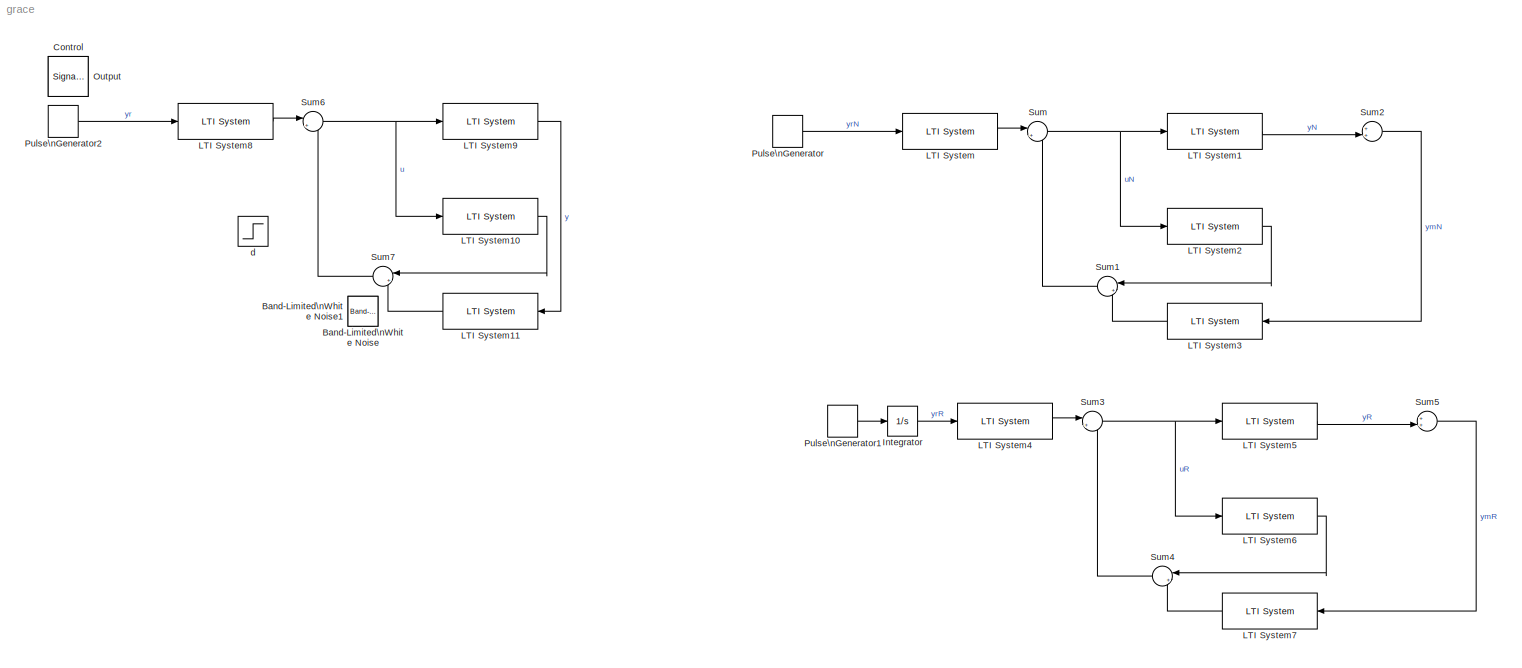
MODEL grace
KIND model
BLOCK [Reference] Band-Limited\nWhite Noise  REF=simulink/Sources/Band-Limited\nWhite Noise
  Cov = Noise_ramp
  IOType = siggen
  Ports = [0, 1]
  SID = 12
  SourceBlock = simulink/Sources/Band-Limited\nWhite Noise
  SourceType = Band-Limited White Noise.
  Ts = Sample_time
  VectorParams1D = on
  seed = [23341]
BLOCK [Reference] Band-Limited\nWhite Noise1  REF=simulink/Sources/Band-Limited\nWhite Noise
  Cov = Noise_step
  IOType = siggen
  Ports = [0, 1]
  SID = 50
  SourceBlock = simulink/Sources/Band-Limited\nWhite Noise
  SourceType = Band-Limited White Noise.
  Ts = Sample_time
  VectorParams1D = on
  seed = [23341]
BLOCK [SignalViewerScope] Control
  IOType = viewer
  MaxDataPoints = 7500
  NumInputPorts = 2
  Ports = []
  RefreshTime = 0.035000
  SID = 55
  ShowDataMarkers = off
  ShowLegends = off
  YMax = 5~5
  YMin = -5~-5
BLOCK [Integrator] Integrator
  Ports = [1, 1]
  SID = 65
BLOCK [Reference] LTI System  REF=cstblocks/LTI System
  IC = []
  Ports = [1, 1]
  SID = 39
  SourceBlock = cstblocks/LTI System
  SourceType = LTI Block
  sys = hs
BLOCK [Reference] LTI System1  REF=cstblocks/LTI System
  IC = []
  Ports = [1, 1]
  SID = 40
  SourceBlock = cstblocks/LTI System
  SourceType = LTI Block
  sys = Gs
BLOCK [Reference] LTI System10  REF=cstblocks/LTI System
  IC = []
  Ports = [1, 1]
  SID = 68
  SourceBlock = cstblocks/LTI System
  SourceType = LTI Block
  sys = Cus
BLOCK [Reference] LTI System11  REF=cstblocks/LTI System
  IC = []
  Ports = [1, 1]
  SID = 69
  SourceBlock = cstblocks/LTI System
  SourceType = LTI Block
  sys = Cys
BLOCK [Reference] LTI System2  REF=cstblocks/LTI System
  IC = []
  Ports = [1, 1]
  SID = 41
  SourceBlock = cstblocks/LTI System
  SourceType = LTI Block
  sys = Cus
BLOCK [Reference] LTI System3  REF=cstblocks/LTI System
  IC = []
  Ports = [1, 1]
  SID = 42
  SourceBlock = cstblocks/LTI System
  SourceType = LTI Block
  sys = Cys
BLOCK [Reference] LTI System4  REF=cstblocks/LTI System
  IC = []
  Ports = [1, 1]
  SID = 57
  SourceBlock = cstblocks/LTI System
  SourceType = LTI Block
  sys = hs
BLOCK [Reference] LTI System5  REF=cstblocks/LTI System
  IC = []
  Ports = [1, 1]
  SID = 58
  SourceBlock = cstblocks/LTI System
  SourceType = LTI Block
  sys = Gs
BLOCK [Reference] LTI System6  REF=cstblocks/LTI System
  IC = []
  Ports = [1, 1]
  SID = 59
  SourceBlock = cstblocks/LTI System
  SourceType = LTI Block
  sys = Cus
BLOCK [Reference] LTI System7  REF=cstblocks/LTI System
  IC = []
  Ports = [1, 1]
  SID = 60
  SourceBlock = cstblocks/LTI System
  SourceType = LTI Block
  sys = Cys
BLOCK [Reference] LTI System8  REF=cstblocks/LTI System
  IC = []
  Ports = [1, 1]
  SID = 66
  SourceBlock = cstblocks/LTI System
  SourceType = LTI Block
  sys = hs
BLOCK [Reference] LTI System9  REF=cstblocks/LTI System
  IC = []
  Ports = [1, 1]
  SID = 67
  SourceBlock = cstblocks/LTI System
  SourceType = LTI Block
  sys = Gs
BLOCK [SignalViewerScope] Output
  IOType = viewer
  LegendLocations = 0.92661     0.84402    0.051611    0.096574\n0.92295     0.42219    0.053807    0.066509
  LimitDataPoints = off
  MaxDataPoints = 7500
  NumInputPorts = 2
  Ports = []
  RefreshTime = 0.035000
  SID = 14
  SaveName = ScopeData1
  ShowDataMarkers = off
  ShowLegends = on
  TimeRange = 40
  YMax = 2.25~2.25
  YMin = -2~-2
BLOCK [DiscretePulseGenerator] Pulse\nGenerator
  Period = 4
  Ports = [0, 1]
  PulseType = Time based
  PulseWidth = 50
  SID = 56
BLOCK [DiscretePulseGenerator] Pulse\nGenerator1
  Period = 4
  Ports = [0, 1]
  PulseType = Time based
  PulseWidth = 50
  SID = 61
BLOCK [DiscretePulseGenerator] Pulse\nGenerator2
  Period = 4
  Ports = [0, 1]
  PulseType = Time based
  PulseWidth = 50
  SID = 70
BLOCK [Sum] Sum
  IconShape = round
  InputSameDT = off
  Inputs = |+-
  OutDataTypeStr = Inherit: Inherit via internal rule
  Ports = [2, 1]
  SID = 44
  SaturateOnIntegerOverflow = off
BLOCK [Sum] Sum1
  IconShape = round
  InputSameDT = off
  Inputs = |++
  OutDataTypeStr = Inherit: Inherit via internal rule
  Ports = [2, 1]
  SID = 45
  SaturateOnIntegerOverflow = off
BLOCK [Sum] Sum2
  IconShape = round
  InputSameDT = off
  Inputs = ++|
  OutDataTypeStr = Inherit: Inherit via internal rule
  Ports = [2, 1]
  SID = 49
  SaturateOnIntegerOverflow = off
BLOCK [Sum] Sum3
  IconShape = round
  InputSameDT = off
  Inputs = |+-
  OutDataTypeStr = Inherit: Inherit via internal rule
  Ports = [2, 1]
  SID = 62
  SaturateOnIntegerOverflow = off
BLOCK [Sum] Sum4
  IconShape = round
  InputSameDT = off
  Inputs = |++
  OutDataTypeStr = Inherit: Inherit via internal rule
  Ports = [2, 1]
  SID = 63
  SaturateOnIntegerOverflow = off
BLOCK [Sum] Sum5
  IconShape = round
  InputSameDT = off
  Inputs = ++|
  OutDataTypeStr = Inherit: Inherit via internal rule
  Ports = [2, 1]
  SID = 64
  SaturateOnIntegerOverflow = off
BLOCK [Sum] Sum6
  IconShape = round
  InputSameDT = off
  Inputs = |+-
  OutDataTypeStr = Inherit: Inherit via internal rule
  Ports = [2, 1]
  SID = 71
  SaturateOnIntegerOverflow = off
BLOCK [Sum] Sum7
  IconShape = round
  InputSameDT = off
  Inputs = |++
  OutDataTypeStr = Inherit: Inherit via internal rule
  Ports = [2, 1]
  SID = 72
  SaturateOnIntegerOverflow = off
BLOCK [Step] d
  After = 0
  IOType = siggen
  SID = 15
  SampleTime = 0.001
  Time = 10
LINE Integrator:1 -> LTI System4:1
LINE LTI System10:1 -> Sum7:1
LINE LTI System11:1 -> Sum7:2
LINE LTI System1:1 -> Sum2:2
LINE LTI System2:1 -> Sum1:1
LINE LTI System3:1 -> Sum1:2
LINE LTI System4:1 -> Sum3:1
LINE LTI System5:1 -> Sum5:2
LINE LTI System6:1 -> Sum4:1
LINE LTI System7:1 -> Sum4:2
LINE LTI System8:1 -> Sum6:1
LINE LTI System9:1 -> LTI System11:1
LINE LTI System:1 -> Sum:1
LINE Pulse\nGenerator1:1 -> Integrator:1
LINE Pulse\nGenerator2:1 -> LTI System8:1
LINE Pulse\nGenerator:1 -> LTI System:1
LINE Sum1:1 -> Sum:2
LINE Sum2:1 -> LTI System3:1
NET Sum3:1 -> LTI System5:1, LTI System6:1
LINE Sum4:1 -> Sum3:2
LINE Sum5:1 -> LTI System7:1
NET Sum6:1 -> LTI System10:1, LTI System9:1
LINE Sum7:1 -> Sum6:2
NET Sum:1 -> LTI System1:1, LTI System2:1
note: NET lines group one-source signal fan-out (src -> all destinations, sorted); 1:1 wires keep LINE
